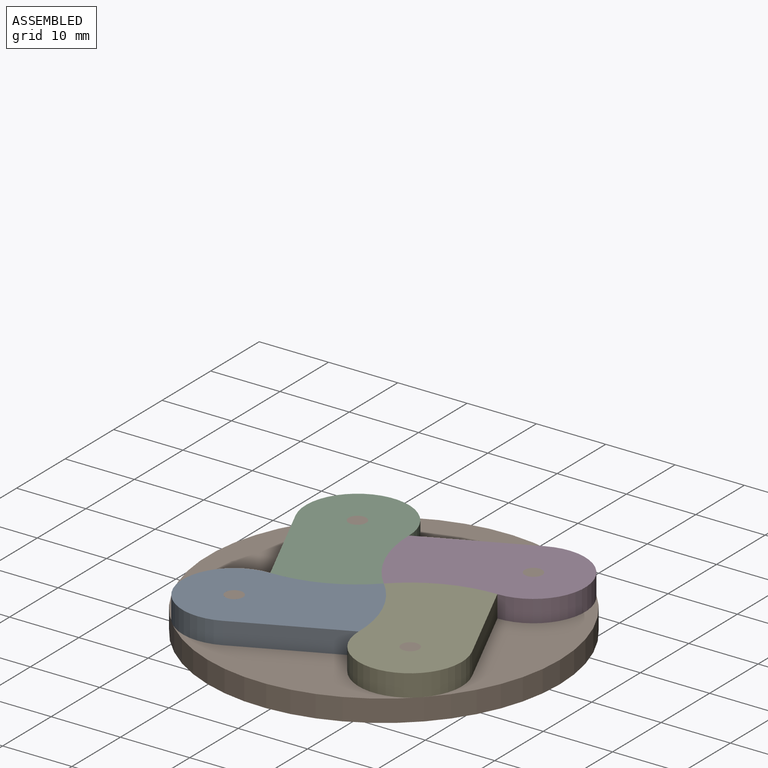
[diagram: assembled view]
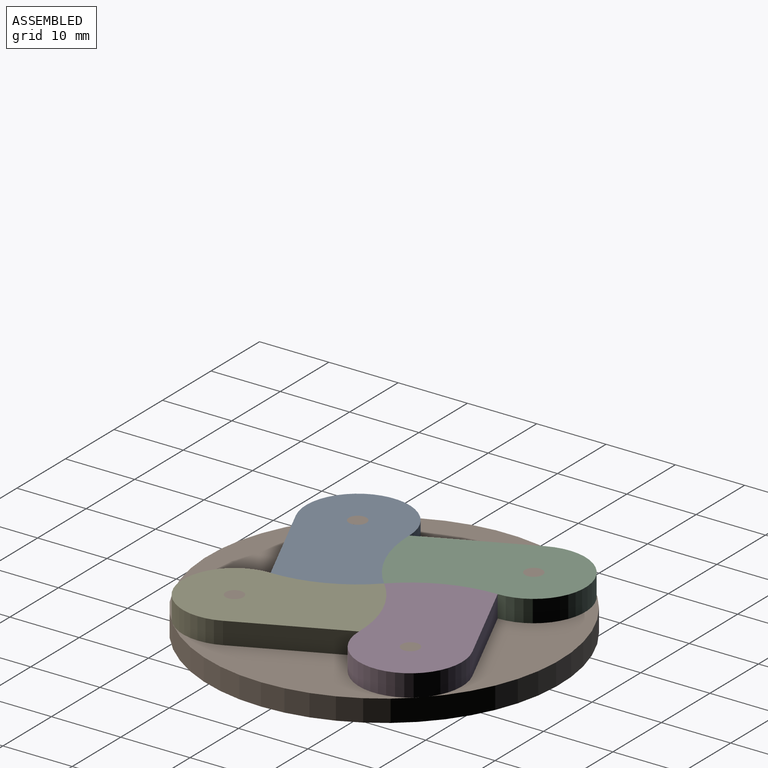
[diagram: assembled view, second angle]
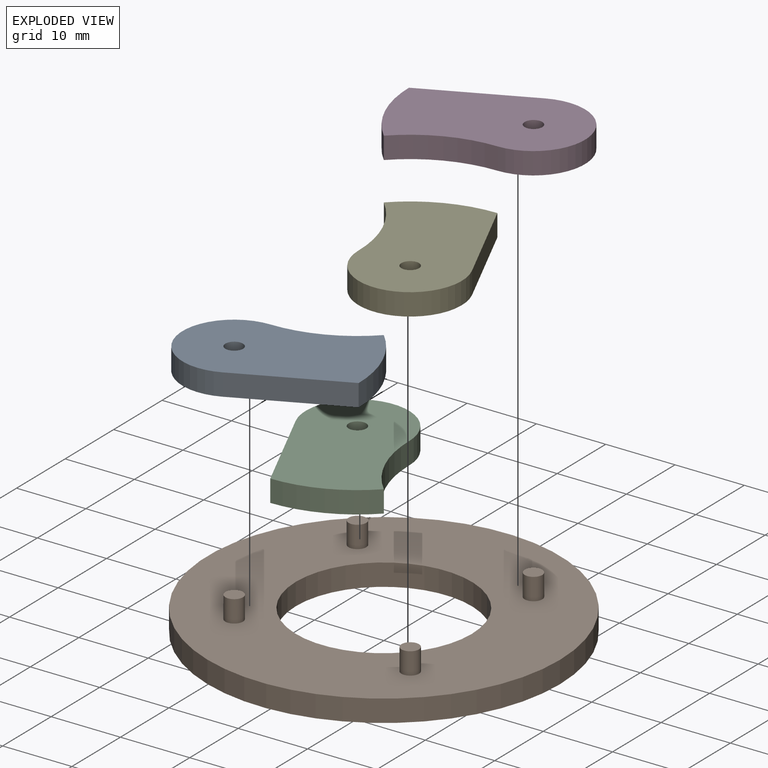
[diagram: exploded view]
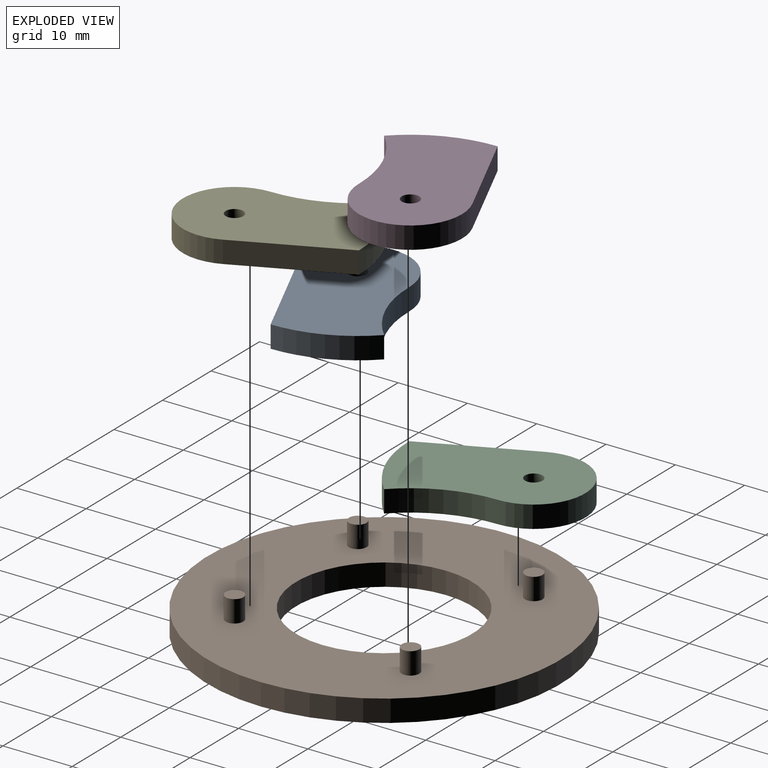
[diagram: exploded view, second angle]
ASSEMBLY  parts=5 mates=4
PART A: 7 faces, bbox 20.1x25.4x3.2 mm
  f0: cylinder r=17.96mm len=12.7mm, axis (0,0,-1), area 44.8mm2, adj f1,f3,f5,f6
  f1: cylinder r=17.96mm len=12.7mm, axis (0,0,-1), area 44.8mm2, adj f0,f2,f5,f6
  f2: cylinder r=7.44mm len=14.88mm, axis (0,0,-1), area 84.3mm2, adj f1,f3,f5,f6
  f3: plane 14.88x6.77mm, normal (0.91,0.41,0), area 51.9mm2, adj f0,f2,f5,f6
  f4: cylinder r=1.27mm len=3.18mm, axis (0,0,-1), area 25.3mm2, adj f5,f6
  f5: plane 25.4x20.14mm, normal (0,0,1), area 315.8mm2, adj f0,f1,f2,f3,f4
  f6: plane 25.4x20.14mm, normal (0,0,-1), area 315.8mm2, adj f0,f1,f2,f3,f4
PART B: 12 faces, bbox 50.8x50.8x6.4 mm
  f0: cylinder r=1.27mm len=3.18mm, axis (0,0,-1), area 25.3mm2, adj f1,f11
  f1: plane 2.54x2.54mm, normal (0,0,1), area 5.1mm2, adj f0
  f2: cylinder r=1.27mm len=3.18mm, axis (0,0,-1), area 25.3mm2, adj f3,f11
  f3: plane 2.54x2.54mm, normal (0,0,1), area 5.1mm2, adj f2
  f4: cylinder r=1.27mm len=3.18mm, axis (0,0,-1), area 25.3mm2, adj f5,f11
  f5: plane 2.54x2.54mm, normal (0,0,1), area 5.1mm2, adj f4
  f6: cylinder r=1.27mm len=3.18mm, axis (0,0,-1), area 25.3mm2, adj f7,f11
  f7: plane 2.54x2.54mm, normal (0,0,1), area 5.1mm2, adj f6
  f8: cylinder r=12.7mm len=25.4mm, axis (0,0,1), area 253.4mm2, adj f10,f11
  f9: cylinder r=25.4mm len=50.8mm, axis (0,0,1), area 506.7mm2, adj f10,f11
  f10: plane 50.8x50.8mm, normal (0,0,-1), area 1520.1mm2, adj f8,f9
  f11: plane 50.8x50.8mm, normal (0,0,1), area 1499.9mm2, adj f0,f2,f4,f6,f8,f9
PART C: same geometry as A
PART D: same geometry as A
PART E: same geometry as A
PLACE A rot(axis=(0,0,-1),90deg) t=(0,0,0)mm
PLACE B at identity fixed
PLACE C rot(axis=(0,0,1),180deg) t=(0,0,0)mm
PLACE D rot(axis=(0,0,1),90deg) t=(0,0,0)mm
PLACE E rot(axis=(0,0,1),0deg) t=(0,0,0)mm
MATE revolute E.f0 <-> B.f4  axis (0,0,-1) through (12.7,-12.7,0)mm
MATE revolute A.f0 <-> B.f0  axis (0,0,-1) through (-12.7,-12.7,0)mm
MATE revolute D.f0 <-> B.f6  axis (0,0,-1) through (12.7,12.7,0)mm
MATE revolute C.f0 <-> B.f2  axis (0,0,-1) through (-12.7,12.7,0)mm
